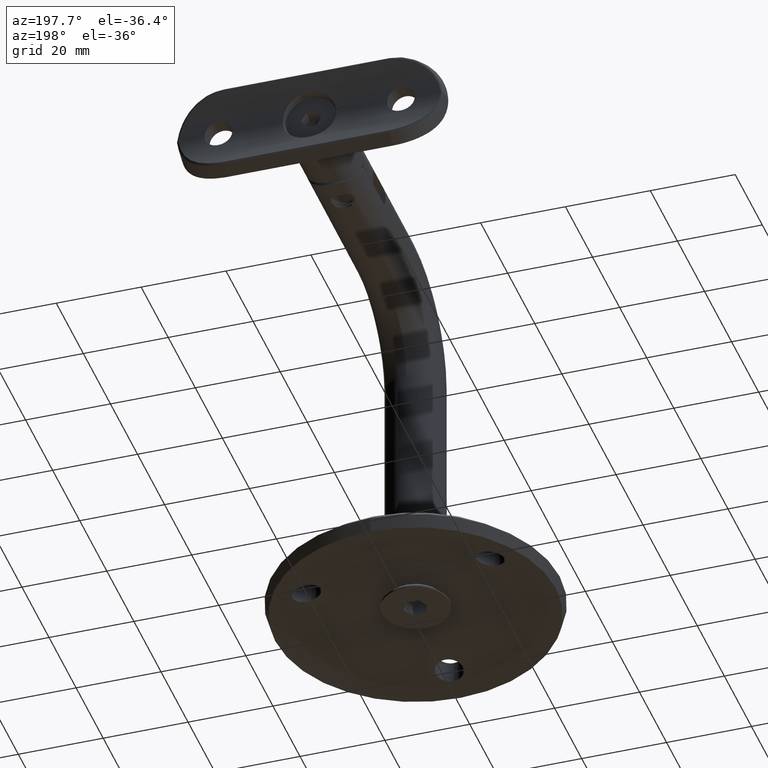
[diagram: clean part render]
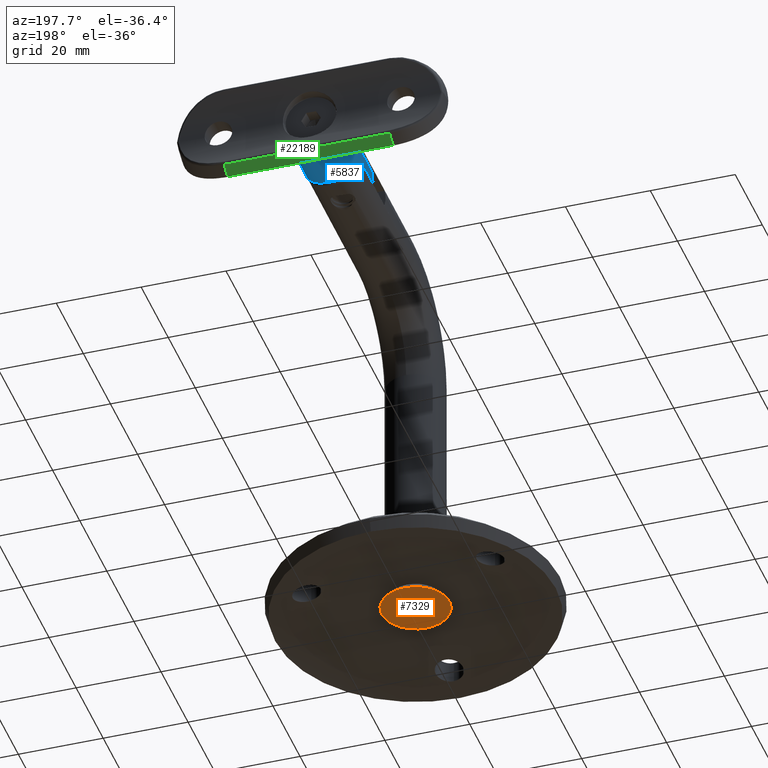
[diagram: same view with three faces highlighted in distinct colors, each labeled with its STEP entity id]
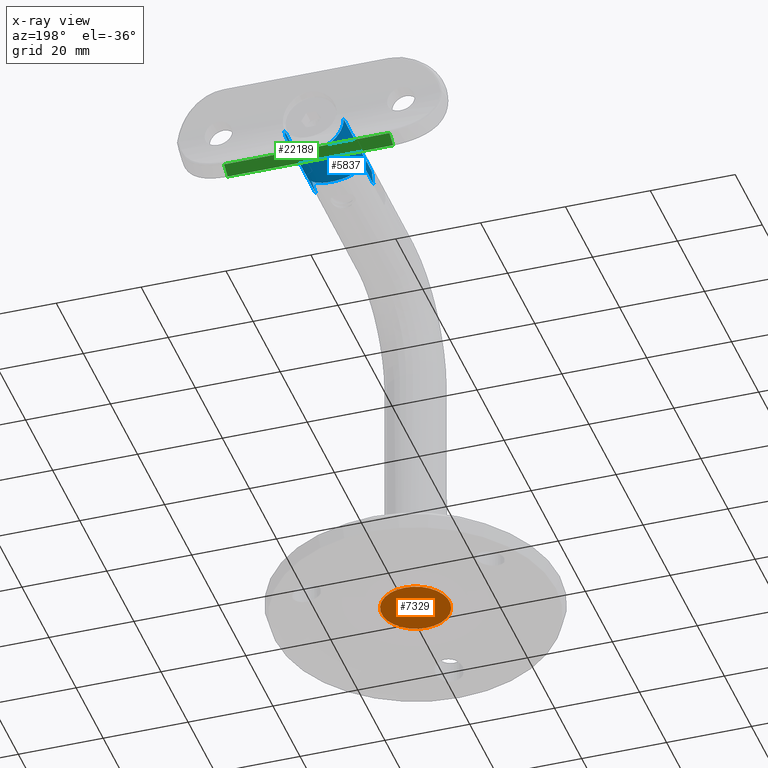
[diagram: x-ray of the same camera — body ghosted, the three highlighted faces saturated]
A machine part, auxiliary view with three faces highlighted in distinct colors.
The next image is the same camera in x-ray (body ghosted, the three faces saturated) — at least one of them is partly hidden behind the body in this view.
Their STEP definitions:

[orange] entity #7329 — the highlighted planar face has unit normal (0, 0, -1).
#831 = DIRECTION ( 'NONE',  ( 1.000000000000000000, -1.502314598737159524E-16, 0.000000000000000000 ) ) ;
#1526 = ORIENTED_EDGE ( 'NONE', *, *, #3305, .F. ) ;
#1799 = LINE ( 'NONE', #8901, #35757 ) ;
#2199 = EDGE_CURVE ( 'NONE', #30704, #31152, #34806, .T. ) ;
#2210 = DIRECTION ( 'NONE',  ( -0.000000000000000000, 1.224646799147353207E-16, -1.000000000000000000 ) ) ;
#2295 = CARTESIAN_POINT ( 'NONE',  ( 0.000000000000000000, 8.998558695971145647E-32, -7.347880794884119736E-16 ) ) ;
#3305 = EDGE_CURVE ( 'NONE', #17570, #12742, #16558, .T. ) ;
#3514 = VERTEX_POINT ( 'NONE', #9733 ) ;
#4355 = EDGE_CURVE ( 'NONE', #12742, #3514, #31199, .T. ) ;
#4730 = EDGE_CURVE ( 'NONE', #3514, #34239, #1799, .T. ) ;
#5069 = DIRECTION ( 'NONE',  ( -1.000000000000000000, 0.000000000000000000, 0.000000000000000000 ) ) ;
#5398 = VERTEX_POINT ( 'NONE', #33194 ) ;
#5656 = ORIENTED_EDGE ( 'NONE', *, *, #4355, .F. ) ;
#6314 = ORIENTED_EDGE ( 'NONE', *, *, #23940, .F. ) ;
#7136 = DIRECTION ( 'NONE',  ( -0.4999999999999996669, 0.8660254037844388186, 0.000000000000000000 ) ) ;
#7329 = ADVANCED_FACE ( 'NONE', ( #32693, #34170 ), #10366, .T. ) ;
#8901 = CARTESIAN_POINT ( 'NONE',  ( 1.443375672974065216, 2.499999999999999112, 0.000000000000000000 ) ) ;
#8909 = CARTESIAN_POINT ( 'NONE',  ( -2.886751345948127767, 1.178225921581595870E-15, 0.000000000000000000 ) ) ;
#9006 = CARTESIAN_POINT ( 'NONE',  ( 0.000000000000000000, 8.000000000000000000, 2.449293598294705921E-16 ) ) ;
#9341 = EDGE_CURVE ( 'NONE', #5398, #34603, #30122, .T. ) ;
#9733 = CARTESIAN_POINT ( 'NONE',  ( 1.443375672974065216, 2.499999999999999112, 0.000000000000000000 ) ) ;
#9775 = ORIENTED_EDGE ( 'NONE', *, *, #21263, .T. ) ;
#10366 = PLANE ( 'NONE',  #13646 ) ;
#10722 = VECTOR ( 'NONE', #26804, 1000.000000000000114 ) ;
#12144 = DIRECTION ( 'NONE',  ( 0.5000000000000002220, 0.8660254037844384856, 0.000000000000000000 ) ) ;
#12742 = VERTEX_POINT ( 'NONE', #21891 ) ;
#13594 = ORIENTED_EDGE ( 'NONE', *, *, #4730, .F. ) ;
#13642 = CARTESIAN_POINT ( 'NONE',  ( 0.000000000000000000, 8.000000000000000000, 6.123233995736766282E-16 ) ) ;
#13646 = AXIS2_PLACEMENT_3D ( 'NONE', #13642, #37269, #27785 ) ;
#13985 = VECTOR ( 'NONE', #831, 1000.000000000000000 ) ;
#16172 = EDGE_CURVE ( 'NONE', #34239, #5398, #23917, .T. ) ;
#16231 = LINE ( 'NONE', #35890, #36980 ) ;
#16471 = ORIENTED_EDGE ( 'NONE', *, *, #9341, .F. ) ;
#16558 = LINE ( 'NONE', #8909, #32770 ) ;
#16969 = VECTOR ( 'NONE', #5069, 1000.000000000000000 ) ;
#17570 = VERTEX_POINT ( 'NONE', #19467 ) ;
#18173 = EDGE_LOOP ( 'NONE', ( #6314, #16471, #28474, #13594, #5656, #1526 ) ) ;
#19467 = CARTESIAN_POINT ( 'NONE',  ( -2.886751345948128655, 8.673617379884035472E-16, -3.673940397442059375E-16 ) ) ;
#21263 = EDGE_CURVE ( 'NONE', #31152, #30704, #28908, .T. ) ;
#21891 = CARTESIAN_POINT ( 'NONE',  ( -1.443375672974063439, 2.499999999999999556, 0.000000000000000000 ) ) ;
#23549 = CARTESIAN_POINT ( 'NONE',  ( 2.886751345948128655, 4.505612662475625554E-16, 0.000000000000000000 ) ) ;
#23917 = LINE ( 'NONE', #23549, #10722 ) ;
#23940 = EDGE_CURVE ( 'NONE', #34603, #17570, #16231, .T. ) ;
#23947 = CARTESIAN_POINT ( 'NONE',  ( -1.443375672974063439, 2.499999999999999556, 0.000000000000000000 ) ) ;
#24626 = CARTESIAN_POINT ( 'NONE',  ( -1.443375672974063439, -2.500000000000000444, 0.000000000000000000 ) ) ;
#24713 = DIRECTION ( 'NONE',  ( -0.000000000000000000, 1.224646799147353207E-16, -1.000000000000000000 ) ) ;
#26804 = DIRECTION ( 'NONE',  ( -0.4999999999999999445, -0.8660254037844385966, -0.000000000000000000 ) ) ;
#27119 = CARTESIAN_POINT ( 'NONE',  ( 9.797174393178825657E-16, -8.000000000000000000, -1.714505518806294638E-15 ) ) ;
#27785 = DIRECTION ( 'NONE',  ( 0.000000000000000000, 1.000000000000000000, 1.224646799147353207E-16 ) ) ;
#27961 = DIRECTION ( 'NONE',  ( 0.000000000000000000, 1.000000000000000000, 1.224646799147353207E-16 ) ) ;
#28474 = ORIENTED_EDGE ( 'NONE', *, *, #16172, .F. ) ;
#28908 = CIRCLE ( 'NONE', #29538, 8.000000000000000000 ) ;
#29538 = AXIS2_PLACEMENT_3D ( 'NONE', #41044, #2210, #38056 ) ;
#30122 = LINE ( 'NONE', #40635, #16969 ) ;
#30704 = VERTEX_POINT ( 'NONE', #9006 ) ;
#31152 = VERTEX_POINT ( 'NONE', #27119 ) ;
#31199 = LINE ( 'NONE', #23947, #13985 ) ;
#32304 = CARTESIAN_POINT ( 'NONE',  ( 2.886751345948128655, 4.505612662475625554E-16, 0.000000000000000000 ) ) ;
#32693 = FACE_BOUND ( 'NONE', #18173, .T. ) ;
#32770 = VECTOR ( 'NONE', #12144, 1000.000000000000227 ) ;
#33194 = CARTESIAN_POINT ( 'NONE',  ( 1.443375672974063662, -2.500000000000000444, -0.000000000000000000 ) ) ;
#34170 = FACE_OUTER_BOUND ( 'NONE', #34490, .T. ) ;
#34239 = VERTEX_POINT ( 'NONE', #32304 ) ;
#34490 = EDGE_LOOP ( 'NONE', ( #36773, #9775 ) ) ;
#34603 = VERTEX_POINT ( 'NONE', #24626 ) ;
#34806 = CIRCLE ( 'NONE', #35852, 8.000000000000000000 ) ;
#35757 = VECTOR ( 'NONE', #41330, 1000.000000000000227 ) ;
#35852 = AXIS2_PLACEMENT_3D ( 'NONE', #2295, #24713, #27961 ) ;
#35890 = CARTESIAN_POINT ( 'NONE',  ( -1.443375672974063439, -2.500000000000000444, 0.000000000000000000 ) ) ;
#36773 = ORIENTED_EDGE ( 'NONE', *, *, #2199, .T. ) ;
#36980 = VECTOR ( 'NONE', #7136, 1000.000000000000000 ) ;
#37269 = DIRECTION ( 'NONE',  ( -0.000000000000000000, 1.224646799147353207E-16, -1.000000000000000000 ) ) ;
#38056 = DIRECTION ( 'NONE',  ( 0.000000000000000000, 1.000000000000000000, 1.224646799147353207E-16 ) ) ;
#40635 = CARTESIAN_POINT ( 'NONE',  ( 1.443375672974063662, -2.500000000000000444, -0.000000000000000000 ) ) ;
#41044 = CARTESIAN_POINT ( 'NONE',  ( 0.000000000000000000, 8.998558695971145647E-32, -7.347880794884119736E-16 ) ) ;
#41330 = DIRECTION ( 'NONE',  ( 0.4999999999999998890, -0.8660254037844385966, 0.000000000000000000 ) ) ;

[blue] entity #5837 — the highlighted cylindrical surface (edge-blend (fillet) strip) has radius 7 mm, axis along (-0, -1, 0).
#108 = VERTEX_POINT ( 'NONE', #5943 ) ;
#115 = LINE ( 'NONE', #41494, #24956 ) ;
#269 = VERTEX_POINT ( 'NONE', #38531 ) ;
#382 = CARTESIAN_POINT ( 'NONE',  ( 5.786992045166831744, 14.23171105629160671, 3.955495712778467343 ) ) ;
#1169 = CARTESIAN_POINT ( 'NONE',  ( 2.000000000000001776, 12.57774721070175694, 6.708203932499369415 ) ) ;
#1198 = ORIENTED_EDGE ( 'NONE', *, *, #25888, .T. ) ;
#1450 = CARTESIAN_POINT ( 'NONE',  ( 2.000000000000001776, 12.57774721070175694, -6.708203932499369415 ) ) ;
#1551 =( BOUNDED_CURVE ( )  B_SPLINE_CURVE ( 3, ( #4159, #36316, #26412, #13944 ),
 .UNSPECIFIED., .F., .F. ) 
 B_SPLINE_CURVE_WITH_KNOTS ( ( 4, 4 ),
 ( 1.281044625358848998, 1.570796326794896780 ),
 .UNSPECIFIED. ) 
 CURVE ( )  GEOMETRIC_REPRESENTATION_ITEM ( )  RATIONAL_B_SPLINE_CURVE ( ( 1.000000000000000000, 0.9930158912520659076, 0.9930158912520659076, 1.000000000000000000 ) ) 
 REPRESENTATION_ITEM ( '' )  );
#2408 = ORIENTED_EDGE ( 'NONE', *, *, #33299, .F. ) ;
#2604 =( BOUNDED_CURVE ( )  B_SPLINE_CURVE ( 3, ( #18471, #25116, #32338, #12492 ),
 .UNSPECIFIED., .F., .F. ) 
 B_SPLINE_CURVE_WITH_KNOTS ( ( 4, 4 ),
 ( 4.712388980384689674, 5.002140681820737456 ),
 .UNSPECIFIED. ) 
 CURVE ( )  GEOMETRIC_REPRESENTATION_ITEM ( )  RATIONAL_B_SPLINE_CURVE ( ( 1.000000000000000000, 0.9930158912520659076, 0.9930158912520659076, 1.000000000000000000 ) ) 
 REPRESENTATION_ITEM ( '' )  );
#3536 = CARTESIAN_POINT ( 'NONE',  ( 0.000000000000000000, 27.69999999999999929, 0.000000000000000000 ) ) ;
#4159 = CARTESIAN_POINT ( 'NONE',  ( 1.999999999999999112, 4.999999999999999112, -6.708203932499367639 ) ) ;
#4425 = CARTESIAN_POINT ( 'NONE',  ( 2.713400598068924197, 12.77752529767903411, 6.463165776157996589 ) ) ;
#4816 = CARTESIAN_POINT ( 'NONE',  ( 1.999999999999999112, 4.999999999999999112, -6.708203932499367639 ) ) ;
#5122 = CIRCLE ( 'NONE', #20122, 7.000000000000000888 ) ;
#5298 = DIRECTION ( 'NONE',  ( -0.000000000000000000, -1.000000000000000000, -0.000000000000000000 ) ) ;
#5452 = CARTESIAN_POINT ( 'NONE',  ( 6.965875584859534619, 14.97716898220107851, 0.7910720141455169774 ) ) ;
#5467 = B_SPLINE_CURVE_WITH_KNOTS ( 'NONE', 3,
 ( #1169, #14080, #4425, #27110, #7696, #30367, #33617, #17488, #12848, #382, #14768, #6666, #13172, #31412, #32505, #5452, #23276, #7112, #40818, #33888, #37009, #11086, #21297, #11635, #14494, #20877, #40542, #40405, #34021, #11499, #37428, #14916, #21156, #1450 ),
 .UNSPECIFIED., .F., .F.,
 ( 4, 2, 2, 2, 2, 2, 2, 2, 2, 2, 2, 2, 2, 2, 2, 2, 4 ),
 ( 0.000000000000000000, 0.001159692097011934655, 0.002319384194023869309, 0.003479076291035803747, 0.004638768388047738618, 0.005798460485059673056, 0.006958152582071607493, 0.008117844679083541931, 0.009277536776095477236, 0.01043722887310741081, 0.01159692097011934611, 0.01217676701862531290, 0.01275661306713128142, 0.01391630516414321499, 0.01623568935816707692, 0.01739538145517900702, 0.01855507355219093713 ),
 .UNSPECIFIED. ) ;
#5745 = DIRECTION ( 'NONE',  ( 0.000000000000000000, 0.000000000000000000, 1.000000000000000000 ) ) ;
#5837 = ADVANCED_FACE ( 'NONE', ( #24110 ), #31694, .T. ) ;
#5943 = CARTESIAN_POINT ( 'NONE',  ( 1.999999999999999112, 4.999999999999999112, 6.708203932499368527 ) ) ;
#6028 = CARTESIAN_POINT ( 'NONE',  ( 0.000000000000000000, 27.69999999999999929, 0.000000000000000000 ) ) ;
#6666 = CARTESIAN_POINT ( 'NONE',  ( 6.340955651380306257, 14.57167843718730893, 2.988258123872794769 ) ) ;
#7112 = CARTESIAN_POINT ( 'NONE',  ( 7.001048272548959339, 15.00069884685219712, -0.3680833715066531564 ) ) ;
#7219 = VECTOR ( 'NONE', #18323, 1000.000000000000000 ) ;
#7235 = DIRECTION ( 'NONE',  ( 0.000000000000000000, 0.000000000000000000, -1.000000000000000000 ) ) ;
#7696 = CARTESIAN_POINT ( 'NONE',  ( 3.690207271789669896, 13.14846106541008730, 5.959556859248443139 ) ) ;
#8113 = CARTESIAN_POINT ( 'NONE',  ( 2.000000000000001776, 12.57774721070175694, 6.708203932499369415 ) ) ;
#8610 = CARTESIAN_POINT ( 'NONE',  ( 2.000000000000001776, 12.57774721070175694, -6.708203932499369415 ) ) ;
#11086 = CARTESIAN_POINT ( 'NONE',  ( 6.563210585580058876, 14.71388815502471914, -2.441483628679070872 ) ) ;
#11499 = CARTESIAN_POINT ( 'NONE',  ( 3.695369663660665882, 13.15063834505849272, -5.956453957825102563 ) ) ;
#11635 = CARTESIAN_POINT ( 'NONE',  ( 6.342393173799406370, 14.57335739416634901, -2.968158163910613823 ) ) ;
#12492 = CARTESIAN_POINT ( 'NONE',  ( 1.999999999999999112, 4.999999999999999112, 6.708203932499368527 ) ) ;
#12848 = CARTESIAN_POINT ( 'NONE',  ( 5.340699643159997123, 13.97311964617640889, 4.540060636839962527 ) ) ;
#12981 = LINE ( 'NONE', #14378, #37822 ) ;
#13172 = CARTESIAN_POINT ( 'NONE',  ( 6.491294757377507274, 14.66749589476120263, 2.646943327226385811 ) ) ;
#13944 = CARTESIAN_POINT ( 'NONE',  ( 0.000000000000000000, 6.999999999999999112, -6.999999999999998224 ) ) ;
#14080 = CARTESIAN_POINT ( 'NONE',  ( 2.366568476869574944, 12.66850728707154872, 6.598914328140847552 ) ) ;
#14181 = EDGE_CURVE ( 'NONE', #269, #23373, #115, .T. ) ;
#14378 = CARTESIAN_POINT ( 'NONE',  ( 0.000000000000000000, 27.69999999999999929, -7.000000000000000888 ) ) ;
#14494 = CARTESIAN_POINT ( 'NONE',  ( 6.260428293652173792, 14.52188527416191555, -3.137175774265053008 ) ) ;
#14768 = CARTESIAN_POINT ( 'NONE',  ( 5.989893732107819169, 14.35443123124193754, 3.641233069403697620 ) ) ;
#14916 = CARTESIAN_POINT ( 'NONE',  ( 2.714574385463746520, 12.77787341376680352, -6.462745367829186627 ) ) ;
#15489 = CARTESIAN_POINT ( 'NONE',  ( 2.000000000000000000, 27.69999999999999929, -6.708203932499369415 ) ) ;
#15644 = VERTEX_POINT ( 'NONE', #4816 ) ;
#15847 = LINE ( 'NONE', #15489, #7219 ) ;
#17488 = CARTESIAN_POINT ( 'NONE',  ( 5.098225568087496384, 13.83768099724544065, 4.810331244273751139 ) ) ;
#18323 = DIRECTION ( 'NONE',  ( 0.000000000000000000, 1.000000000000000000, 0.000000000000000000 ) ) ;
#18471 = CARTESIAN_POINT ( 'NONE',  ( -1.734723475976807094E-15, 7.000000000000000888, 7.000000000000000888 ) ) ;
#19517 = ORIENTED_EDGE ( 'NONE', *, *, #25292, .F. ) ;
#19877 = VERTEX_POINT ( 'NONE', #32666 ) ;
#20122 = AXIS2_PLACEMENT_3D ( 'NONE', #6028, #25171, #5745 ) ;
#20247 = LINE ( 'NONE', #37332, #42010 ) ;
#20877 = CARTESIAN_POINT ( 'NONE',  ( 5.996326991454274946, 14.35833786712822047, -3.630895157663142747 ) ) ;
#21156 = CARTESIAN_POINT ( 'NONE',  ( 2.366925258247766006, 12.66859562392311922, -6.598807956485550186 ) ) ;
#21297 = CARTESIAN_POINT ( 'NONE',  ( 6.493698171597642066, 14.66930154746918546, -2.620648414655420311 ) ) ;
#22759 = VERTEX_POINT ( 'NONE', #37224 ) ;
#23276 = CARTESIAN_POINT ( 'NONE',  ( 6.998897834509339333, 14.99926522455842104, 0.4069292137963691491 ) ) ;
#23373 = VERTEX_POINT ( 'NONE', #26454 ) ;
#24110 = FACE_OUTER_BOUND ( 'NONE', #40894, .T. ) ;
#24170 = VERTEX_POINT ( 'NONE', #8113 ) ;
#24956 = VECTOR ( 'NONE', #25345, 1000.000000000000000 ) ;
#25116 = CARTESIAN_POINT ( 'NONE',  ( 0.6784631773098521723, 6.321536822690147162, 6.999999999999999112 ) ) ;
#25171 = DIRECTION ( 'NONE',  ( 0.000000000000000000, 1.000000000000000000, 0.000000000000000000 ) ) ;
#25292 = EDGE_CURVE ( 'NONE', #15644, #37762, #15847, .T. ) ;
#25345 = DIRECTION ( 'NONE',  ( -0.000000000000000000, -1.000000000000000000, -0.000000000000000000 ) ) ;
#25888 = EDGE_CURVE ( 'NONE', #23373, #108, #2604, .T. ) ;
#26412 = CARTESIAN_POINT ( 'NONE',  ( 0.6784631773098523944, 6.321536822690147162, -6.999999999999999112 ) ) ;
#26454 = CARTESIAN_POINT ( 'NONE',  ( -1.734723475976807094E-15, 7.000000000000000888, 7.000000000000000888 ) ) ;
#27110 = CARTESIAN_POINT ( 'NONE',  ( 3.375247361192844853, 13.01746306110890927, 6.143513645013049640 ) ) ;
#27208 = EDGE_CURVE ( 'NONE', #269, #19877, #5122, .T. ) ;
#30208 = AXIS2_PLACEMENT_3D ( 'NONE', #3536, #30319, #7235 ) ;
#30247 = DIRECTION ( 'NONE',  ( -0.000000000000000000, -1.000000000000000000, -0.000000000000000000 ) ) ;
#30319 = DIRECTION ( 'NONE',  ( -0.000000000000000000, -1.000000000000000000, -0.000000000000000000 ) ) ;
#30367 = CARTESIAN_POINT ( 'NONE',  ( 4.291568075589168529, 13.42164814586188903, 5.542237014055643840 ) ) ;
#31412 = CARTESIAN_POINT ( 'NONE',  ( 6.738828323587278568, 14.82728775224216911, 1.931685644695552817 ) ) ;
#31694 = CYLINDRICAL_SURFACE ( 'NONE', #30208, 7.000000000000000888 ) ;
#32242 = ORIENTED_EDGE ( 'NONE', *, *, #35180, .T. ) ;
#32338 = CARTESIAN_POINT ( 'NONE',  ( 1.349818663702004207, 5.650181336297994683, 6.902050554587897402 ) ) ;
#32505 = CARTESIAN_POINT ( 'NONE',  ( 6.836534901959994137, 14.89162435250483085, 1.552742132354663074 ) ) ;
#32666 = CARTESIAN_POINT ( 'NONE',  ( 0.000000000000000000, 27.69999999999999929, -7.000000000000000888 ) ) ;
#33299 = EDGE_CURVE ( 'NONE', #24170, #108, #20247, .T. ) ;
#33332 = ORIENTED_EDGE ( 'NONE', *, *, #35759, .T. ) ;
#33527 = ORIENTED_EDGE ( 'NONE', *, *, #14181, .T. ) ;
#33617 = CARTESIAN_POINT ( 'NONE',  ( 4.574524191117704142, 13.56237573919436912, 5.310830353872761478 ) ) ;
#33888 = CARTESIAN_POINT ( 'NONE',  ( 6.842415717056735680, 14.89549897879321350, -1.526822293499675798 ) ) ;
#34021 = CARTESIAN_POINT ( 'NONE',  ( 4.600603523304217291, 13.56237827958038089, -5.326804861503371846 ) ) ;
#35083 = ORIENTED_EDGE ( 'NONE', *, *, #39113, .F. ) ;
#35180 = EDGE_CURVE ( 'NONE', #24170, #37762, #5467, .T. ) ;
#35759 = EDGE_CURVE ( 'NONE', #15644, #22759, #1551, .T. ) ;
#36316 = CARTESIAN_POINT ( 'NONE',  ( 1.349818663702004207, 5.650181336297994683, -6.902050554587897402 ) ) ;
#37009 = CARTESIAN_POINT ( 'NONE',  ( 6.748486738297992282, 14.83359499243706736, -1.898480640440700640 ) ) ;
#37224 = CARTESIAN_POINT ( 'NONE',  ( 0.000000000000000000, 6.999999999999999112, -6.999999999999998224 ) ) ;
#37332 = CARTESIAN_POINT ( 'NONE',  ( 2.000000000000000000, 27.69999999999999929, 6.708203932499369415 ) ) ;
#37428 = CARTESIAN_POINT ( 'NONE',  ( 3.378598239792882207, 13.01875579096284419, -6.141747773857365367 ) ) ;
#37762 = VERTEX_POINT ( 'NONE', #8610 ) ;
#37822 = VECTOR ( 'NONE', #30247, 1000.000000000000000 ) ;
#38531 = CARTESIAN_POINT ( 'NONE',  ( 8.572527594031474176E-16, 27.69999999999999929, 7.000000000000000888 ) ) ;
#39113 = EDGE_CURVE ( 'NONE', #19877, #22759, #12981, .T. ) ;
#39310 = ORIENTED_EDGE ( 'NONE', *, *, #27208, .F. ) ;
#40405 = CARTESIAN_POINT ( 'NONE',  ( 5.123306368496068686, 13.84691110070041908, -4.827093295004147855 ) ) ;
#40542 = CARTESIAN_POINT ( 'NONE',  ( 5.796133557264200320, 14.23713427854290536, -3.942348315711389439 ) ) ;
#40818 = CARTESIAN_POINT ( 'NONE',  ( 6.969043535917540666, 14.97928022235209866, -0.7630670713892510060 ) ) ;
#40894 = EDGE_LOOP ( 'NONE', ( #39310, #33527, #1198, #2408, #32242, #19517, #33332, #35083 ) ) ;
#41494 = CARTESIAN_POINT ( 'NONE',  ( 8.572527594031474176E-16, 27.69999999999999929, 7.000000000000000888 ) ) ;
#42010 = VECTOR ( 'NONE', #5298, 1000.000000000000000 ) ;

[green] entity #22189 — the highlighted planar face has unit normal (0, 0.4819, -0.8762).
#241 = CARTESIAN_POINT ( 'NONE',  ( -11.95171006567578331, -0.5298556485316758824, 19.50000000000000000 ) ) ;
#336 = EDGE_CURVE ( 'NONE', #21755, #1074, #2409, .T. ) ;
#1074 = VERTEX_POINT ( 'NONE', #17569 ) ;
#2409 = LINE ( 'NONE', #22268, #15618 ) ;
#2818 = DIRECTION ( 'NONE',  ( 0.000000000000000000, 0.000000000000000000, -1.000000000000000000 ) ) ;
#3441 = VERTEX_POINT ( 'NONE', #241 ) ;
#10542 = AXIS2_PLACEMENT_3D ( 'NONE', #20671, #17691, #34089 ) ;
#10872 = PLANE ( 'NONE',  #10542 ) ;
#12166 = DIRECTION ( 'NONE',  ( -0.4819277108433736023, -0.8762109800277931848, -0.000000000000000000 ) ) ;
#12312 = DIRECTION ( 'NONE',  ( 0.000000000000000000, 0.000000000000000000, 1.000000000000000000 ) ) ;
#13415 = EDGE_CURVE ( 'NONE', #1074, #30998, #24422, .T. ) ;
#13478 = EDGE_CURVE ( 'NONE', #30998, #3441, #19398, .T. ) ;
#15601 = CARTESIAN_POINT ( 'NONE',  ( -11.99999999999999645, -0.6176534026920471598, -19.50000000000000000 ) ) ;
#15618 = VECTOR ( 'NONE', #2818, 1000.000000000000000 ) ;
#17569 = CARTESIAN_POINT ( 'NONE',  ( -10.45505487545768020, 2.191269701761548117, -19.50000000000000000 ) ) ;
#17691 = DIRECTION ( 'NONE',  ( -0.8762109800277931848, 0.4819277108433736023, 0.000000000000000000 ) ) ;
#18090 = ORIENTED_EDGE ( 'NONE', *, *, #13478, .T. ) ;
#19398 = LINE ( 'NONE', #28468, #34574 ) ;
#20613 = LINE ( 'NONE', #21942, #41890 ) ;
#20671 = CARTESIAN_POINT ( 'NONE',  ( -11.99999999999999822, -0.6176534026920490472, 31.50000000000000000 ) ) ;
#21755 = VERTEX_POINT ( 'NONE', #36477 ) ;
#21942 = CARTESIAN_POINT ( 'NONE',  ( -11.99999999999999822, -0.6176534026920490472, 19.50000000000000000 ) ) ;
#22189 = ADVANCED_FACE ( 'NONE', ( #26390 ), #10872, .T. ) ;
#22268 = CARTESIAN_POINT ( 'NONE',  ( -10.45505487545768197, 2.191269701761548561, 31.50000000000000000 ) ) ;
#24422 = LINE ( 'NONE', #15601, #39139 ) ;
#25185 = DIRECTION ( 'NONE',  ( 0.4819277108433736023, 0.8762109800277931848, -0.000000000000000000 ) ) ;
#26390 = FACE_OUTER_BOUND ( 'NONE', #40964, .T. ) ;
#27782 = ORIENTED_EDGE ( 'NONE', *, *, #13415, .T. ) ;
#28468 = CARTESIAN_POINT ( 'NONE',  ( -11.95171006567578331, -0.5298556485316761044, 19.50000000000000000 ) ) ;
#30998 = VERTEX_POINT ( 'NONE', #39440 ) ;
#33238 = ORIENTED_EDGE ( 'NONE', *, *, #336, .T. ) ;
#34089 = DIRECTION ( 'NONE',  ( -0.4819277108433736023, -0.8762109800277931848, 0.000000000000000000 ) ) ;
#34574 = VECTOR ( 'NONE', #12312, 1000.000000000000000 ) ;
#36285 = ORIENTED_EDGE ( 'NONE', *, *, #39371, .T. ) ;
#36477 = CARTESIAN_POINT ( 'NONE',  ( -10.45505487545768197, 2.191269701761548561, 19.50000000000000000 ) ) ;
#39139 = VECTOR ( 'NONE', #12166, 1000.000000000000000 ) ;
#39371 = EDGE_CURVE ( 'NONE', #3441, #21755, #20613, .T. ) ;
#39440 = CARTESIAN_POINT ( 'NONE',  ( -11.95171006567578331, -0.5298556485316761044, -19.50000000000000000 ) ) ;
#40964 = EDGE_LOOP ( 'NONE', ( #27782, #18090, #36285, #33238 ) ) ;
#41890 = VECTOR ( 'NONE', #25185, 1000.000000000000000 ) ;